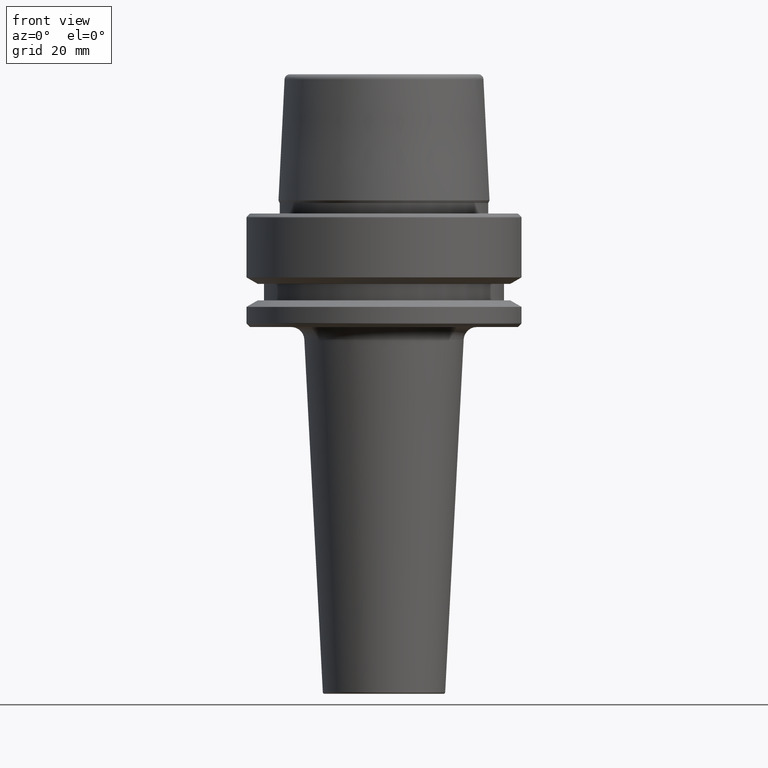
[diagram: clean part render]
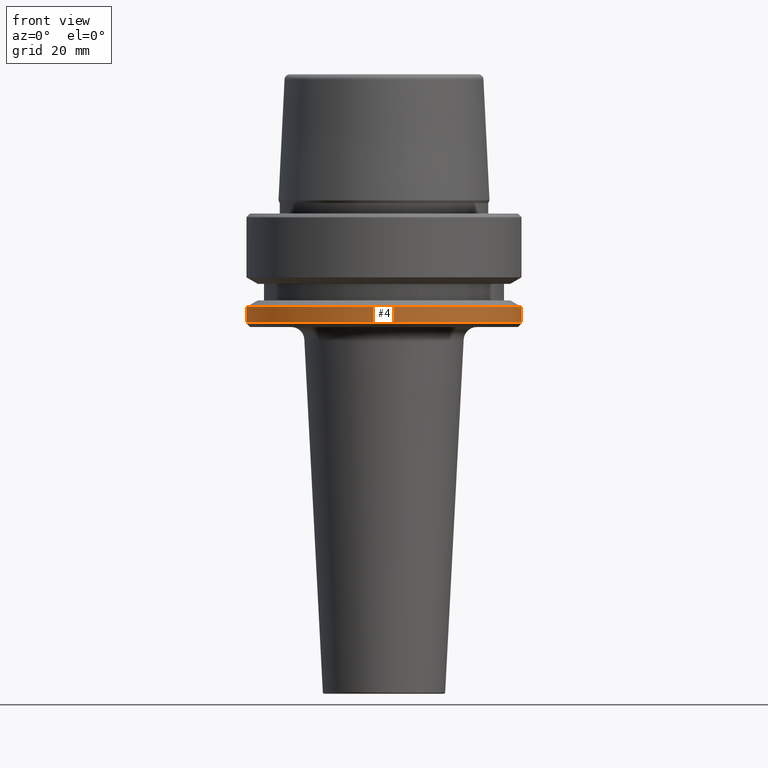
[diagram: same view with one face highlighted and labeled with its STEP entity id]
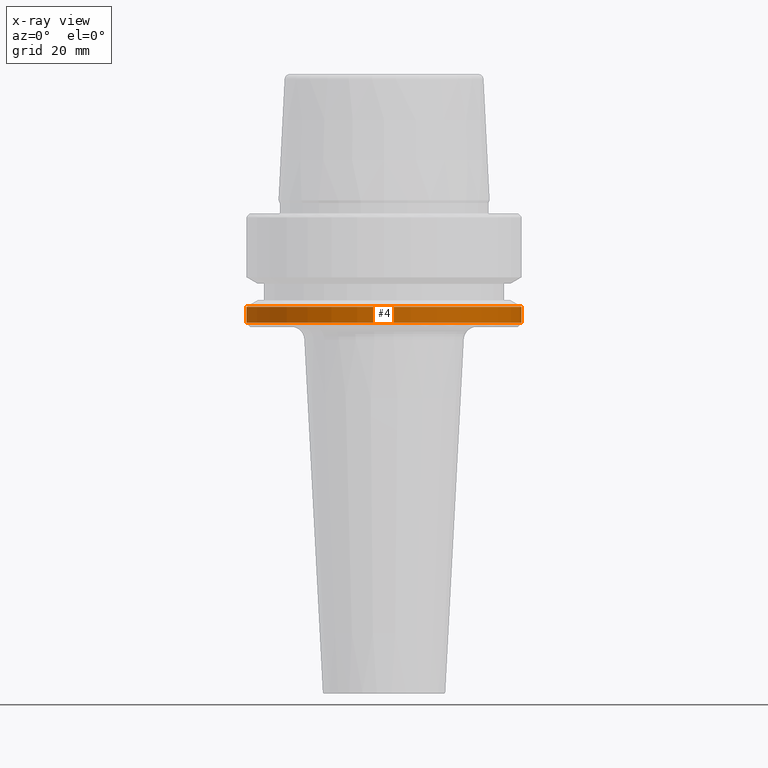
[diagram: x-ray of the same camera — body ghosted, the highlighted face saturated]
A machine part, front view. The second image highlights one B-rep face of the part: STEP entity #4.
The next image is the same camera in x-ray: the body ghosted, the highlighted face saturated — about 0% of this face is hidden behind the body in this view.
In plain terms, the highlighted cylindrical surface (partial cylindrical patch) has radius 31.5 mm, axis along (-0, -0, 1).
Its self-contained STEP definition (entity closure, byte-faithful):
#4 = ADVANCED_FACE ( 'NONE', ( #785 ), #779, .T. ) ;
#6 = EDGE_LOOP ( 'NONE', ( #374, #1068, #1124, #243 ) ) ;
#61 = DIRECTION ( 'NONE',  ( -0.0000000000000000000, -0.0000000000000000000, 1.000000000000000000 ) ) ;
#70 = CARTESIAN_POINT ( 'NONE',  ( 0.0000000000000000000, 0.0000000000000000000, -25.03431457505077200 ) ) ;
#76 = VERTEX_POINT ( 'NONE', #795 ) ;
#84 = CARTESIAN_POINT ( 'NONE',  ( 31.50000000000000000, 0.0000000000000000000, 78.96908074195309300 ) ) ;
#90 = EDGE_CURVE ( 'NONE', #744, #1257, #557, .T. ) ;
#110 = EDGE_CURVE ( 'NONE', #1257, #76, #538, .T. ) ;
#119 = DIRECTION ( 'NONE',  ( -0.0000000000000000000, -0.0000000000000000000, 1.000000000000000000 ) ) ;
#138 = EDGE_CURVE ( 'NONE', #744, #350, #527, .T. ) ;
#182 = CARTESIAN_POINT ( 'NONE',  ( -31.50000000000000000, 3.857637417314162700E-015, 78.96908074195309300 ) ) ;
#187 = LINE ( 'NONE', #84, #483 ) ;
#243 = ORIENTED_EDGE ( 'NONE', *, *, #110, .F. ) ;
#255 = CARTESIAN_POINT ( 'NONE',  ( 31.50000000000000000, 0.0000000000000000000, -25.03431457505077200 ) ) ;
#294 = VECTOR ( 'NONE', #1006, 1000.000000000000000 ) ;
#350 = VERTEX_POINT ( 'NONE', #255 ) ;
#373 = CARTESIAN_POINT ( 'NONE',  ( -31.50000000000000000, 3.857637417314161900E-015, -25.03431457505077200 ) ) ;
#374 = ORIENTED_EDGE ( 'NONE', *, *, #90, .F. ) ;
#375 = AXIS2_PLACEMENT_3D ( 'NONE', #393, #119, #1144 ) ;
#393 = CARTESIAN_POINT ( 'NONE',  ( 0.0000000000000000000, 0.0000000000000000000, 78.96908074195309300 ) ) ;
#483 = VECTOR ( 'NONE', #61, 1000.000000000000000 ) ;
#488 = DIRECTION ( 'NONE',  ( 1.000000000000000000, 0.0000000000000000000, 0.0000000000000000000 ) ) ;
#527 = CIRCLE ( 'NONE', #1086, 31.50000000000000000 ) ;
#538 = CIRCLE ( 'NONE', #954, 31.50000000000000000 ) ;
#557 = LINE ( 'NONE', #182, #294 ) ;
#744 = VERTEX_POINT ( 'NONE', #373 ) ;
#778 = EDGE_CURVE ( 'NONE', #350, #76, #187, .T. ) ;
#779 = CYLINDRICAL_SURFACE ( 'NONE', #375, 31.50000000000000000 ) ;
#785 = FACE_OUTER_BOUND ( 'NONE', #6, .T. ) ;
#795 = CARTESIAN_POINT ( 'NONE',  ( 31.50000000000000000, 0.0000000000000000000, -21.37749907475931700 ) ) ;
#885 = CARTESIAN_POINT ( 'NONE',  ( 0.0000000000000000000, 0.0000000000000000000, -21.37749907475931700 ) ) ;
#918 = DIRECTION ( 'NONE',  ( -0.0000000000000000000, -0.0000000000000000000, 1.000000000000000000 ) ) ;
#936 = DIRECTION ( 'NONE',  ( 1.000000000000000000, 0.0000000000000000000, 0.0000000000000000000 ) ) ;
#954 = AXIS2_PLACEMENT_3D ( 'NONE', #885, #918, #936 ) ;
#1006 = DIRECTION ( 'NONE',  ( -0.0000000000000000000, -0.0000000000000000000, 1.000000000000000000 ) ) ;
#1068 = ORIENTED_EDGE ( 'NONE', *, *, #138, .T. ) ;
#1086 = AXIS2_PLACEMENT_3D ( 'NONE', #70, #1163, #488 ) ;
#1124 = ORIENTED_EDGE ( 'NONE', *, *, #778, .T. ) ;
#1144 = DIRECTION ( 'NONE',  ( 1.000000000000000000, 0.0000000000000000000, 0.0000000000000000000 ) ) ;
#1163 = DIRECTION ( 'NONE',  ( -0.0000000000000000000, -0.0000000000000000000, 1.000000000000000000 ) ) ;
#1212 = CARTESIAN_POINT ( 'NONE',  ( -31.50000000000000000, 3.857637417314162700E-015, -21.37749907475931700 ) ) ;
#1257 = VERTEX_POINT ( 'NONE', #1212 ) ;